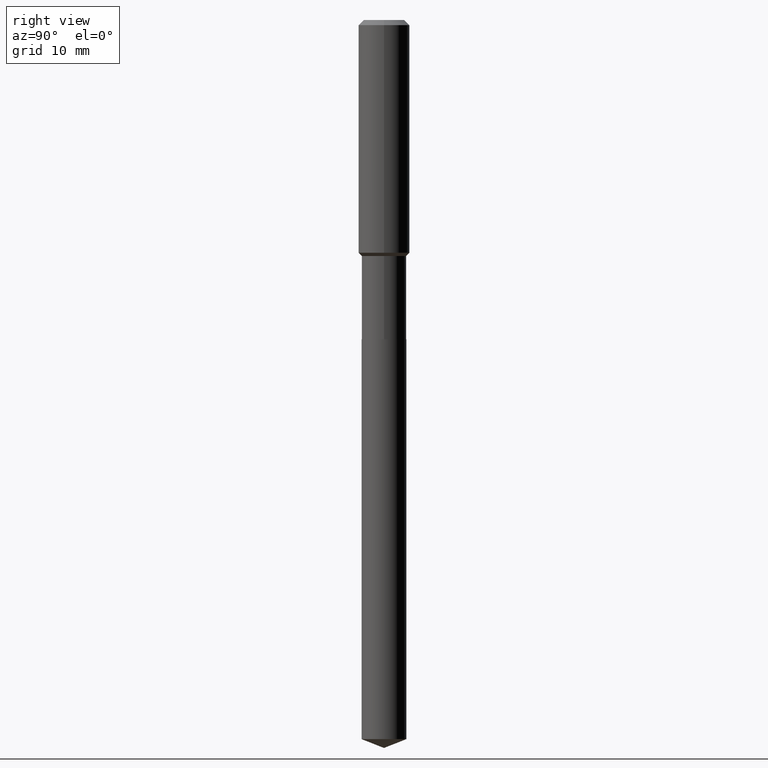
[diagram: clean part render]
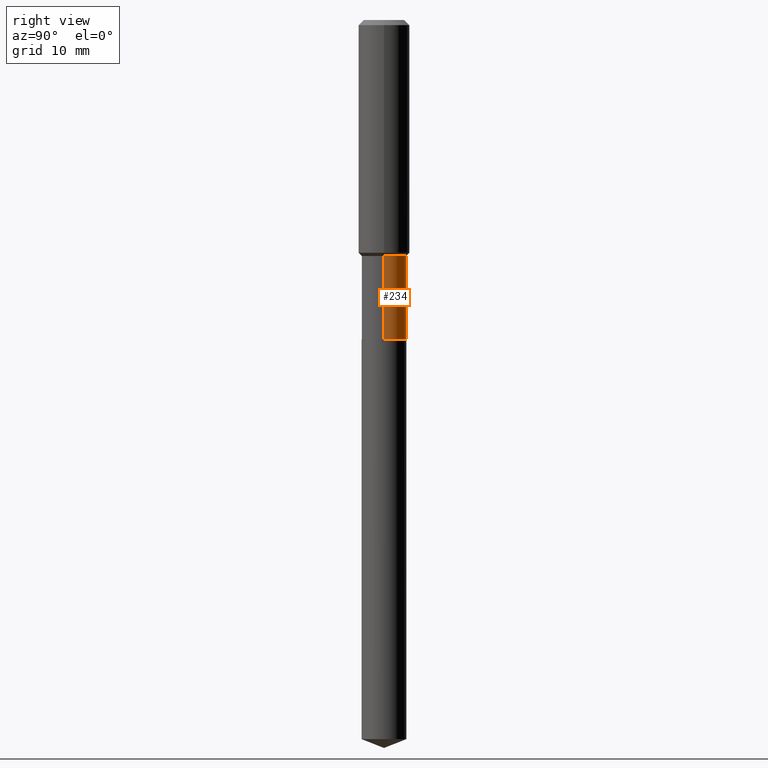
[diagram: same view with one face highlighted and labeled with its STEP entity id]
A machine part, right view. The second image highlights one B-rep face of the part: STEP entity #234.
In plain terms, the highlighted cylindrical surface (edge-blend (fillet) strip) has radius 3.5001 mm, axis along (-0, 0, 1).
Its self-contained STEP definition (entity closure, byte-faithful):
#4 = EDGE_CURVE ( 'NONE', #398, #346, #222, .T. ) ;
#23 = CARTESIAN_POINT ( 'NONE',  ( 3.557668019238137054E-29, -5.079407051749007943E-15, -1.454800000000000093 ) ) ;
#24 = CARTESIAN_POINT ( 'NONE',  ( 4.812682610572349594E-29, -6.871235274843310993E-15, -1.968000000000000194 ) ) ;
#43 = AXIS2_PLACEMENT_3D ( 'NONE', #157, #435, #448 ) ;
#45 = LINE ( 'NONE', #164, #69 ) ;
#47 = VERTEX_POINT ( 'NONE', #304 ) ;
#57 = CARTESIAN_POINT ( 'NONE',  ( 0.1377999999999999503, -6.041659308734175420E-15, -1.454800000000000093 ) ) ;
#69 = VECTOR ( 'NONE', #83, 39.37007874015748143 ) ;
#72 = EDGE_CURVE ( 'NONE', #47, #398, #161, .T. ) ;
#80 = VECTOR ( 'NONE', #158, 39.37007874015748143 ) ;
#83 = DIRECTION ( 'NONE',  ( -2.445468806185136877E-29, 3.491481338843145188E-15, 1.000000000000000000 ) ) ;
#84 = ORIENTED_EDGE ( 'NONE', *, *, #214, .T. ) ;
#97 = VERTEX_POINT ( 'NONE', #461 ) ;
#111 = CYLINDRICAL_SURFACE ( 'NONE', #43, 0.1377999999999999781 ) ;
#138 = DIRECTION ( 'NONE',  ( 1.000000000000000000, -6.982962677686268288E-15, 0.000000000000000000 ) ) ;
#153 = AXIS2_PLACEMENT_3D ( 'NONE', #24, #387, #319 ) ;
#157 = CARTESIAN_POINT ( 'NONE',  ( 0.000000000000000000, 0.000000000000000000, 0.000000000000000000 ) ) ;
#158 = DIRECTION ( 'NONE',  ( -2.445468806185136877E-29, 3.491481338843145188E-15, 1.000000000000000000 ) ) ;
#161 = LINE ( 'NONE', #309, #80 ) ;
#164 = CARTESIAN_POINT ( 'NONE',  ( -0.1377999999999999781, 9.791278898774179003E-16, -6.778292554371258633E-30 ) ) ;
#176 = AXIS2_PLACEMENT_3D ( 'NONE', #23, #408, #138 ) ;
#214 = EDGE_CURVE ( 'NONE', #97, #346, #45, .T. ) ;
#222 = CIRCLE ( 'NONE', #176, 0.1377999999999999503 ) ;
#234 = ADVANCED_FACE ( 'NONE', ( #406 ), #111, .T. ) ;
#297 = ORIENTED_EDGE ( 'NONE', *, *, #4, .F. ) ;
#304 = CARTESIAN_POINT ( 'NONE',  ( 0.1378000000000000058, -7.833487531828478470E-15, -1.968000000000000194 ) ) ;
#307 = CIRCLE ( 'NONE', #153, 0.1378000000000000058 ) ;
#308 = CARTESIAN_POINT ( 'NONE',  ( -0.1377999999999999503, -4.996193273418741568E-15, -1.454800000000000093 ) ) ;
#309 = CARTESIAN_POINT ( 'NONE',  ( 0.1377999999999999781, -9.622522569851674770E-16, 6.719371597046798536E-30 ) ) ;
#319 = DIRECTION ( 'NONE',  ( 1.000000000000000000, -6.982962677686265922E-15, 0.000000000000000000 ) ) ;
#346 = VERTEX_POINT ( 'NONE', #308 ) ;
#354 = EDGE_LOOP ( 'NONE', ( #467, #84, #297, #372 ) ) ;
#372 = ORIENTED_EDGE ( 'NONE', *, *, #72, .F. ) ;
#387 = DIRECTION ( 'NONE',  ( -2.445468806185136597E-29, 3.491481338843145583E-15, 1.000000000000000000 ) ) ;
#398 = VERTEX_POINT ( 'NONE', #57 ) ;
#406 = FACE_OUTER_BOUND ( 'NONE', #354, .T. ) ;
#408 = DIRECTION ( 'NONE',  ( -2.445468806185136597E-29, 3.491481338843145583E-15, 1.000000000000000000 ) ) ;
#426 = EDGE_CURVE ( 'NONE', #47, #97, #307, .T. ) ;
#435 = DIRECTION ( 'NONE',  ( -2.445468806185136597E-29, 3.491481338843145583E-15, 1.000000000000000000 ) ) ;
#448 = DIRECTION ( 'NONE',  ( 1.000000000000000000, -6.982962677686267499E-15, 4.876176775795935793E-29 ) ) ;
#461 = CARTESIAN_POINT ( 'NONE',  ( -0.1378000000000000058, -4.996193273418741568E-15, -1.968000000000000194 ) ) ;
#467 = ORIENTED_EDGE ( 'NONE', *, *, #426, .T. ) ;